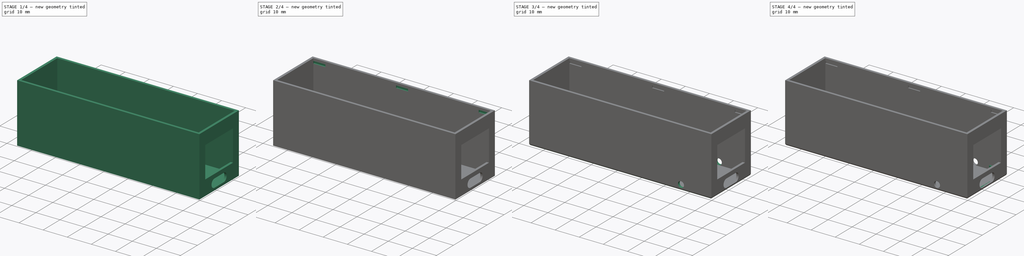
[diagram: build sequence overview — one tinted view per stage of 4, left to right]
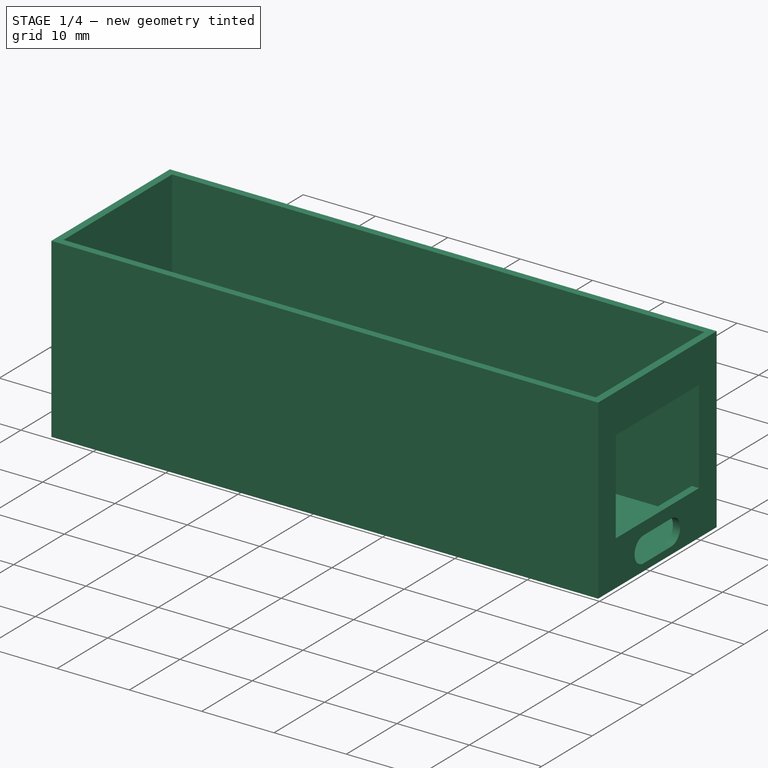
[diagram: stage 1 of 4 — iso view after this stage's code; geometry added in this stage tinted green]
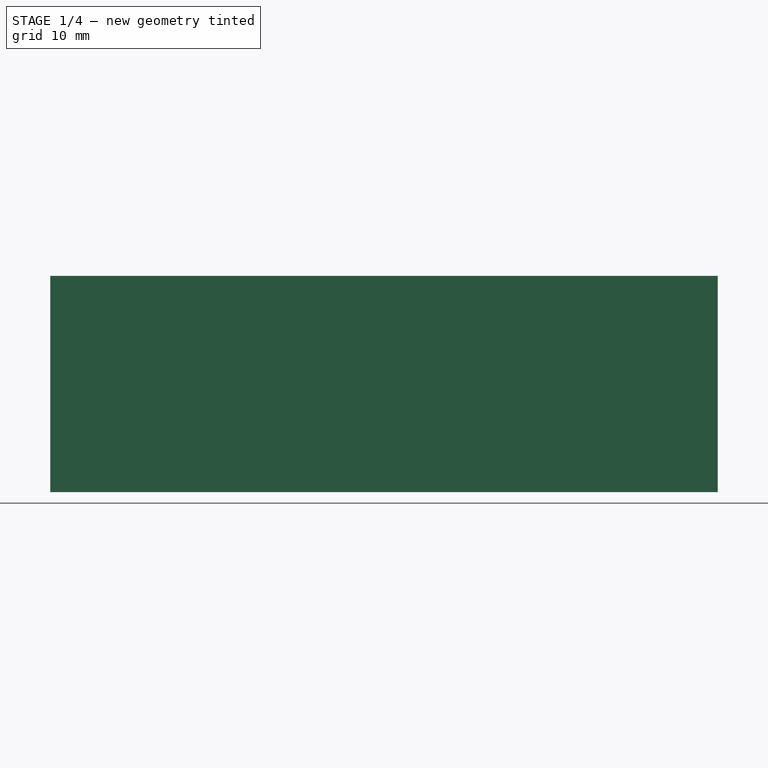
[diagram: stage 1 of 4 — front view after this stage's code; geometry added in this stage tinted green]
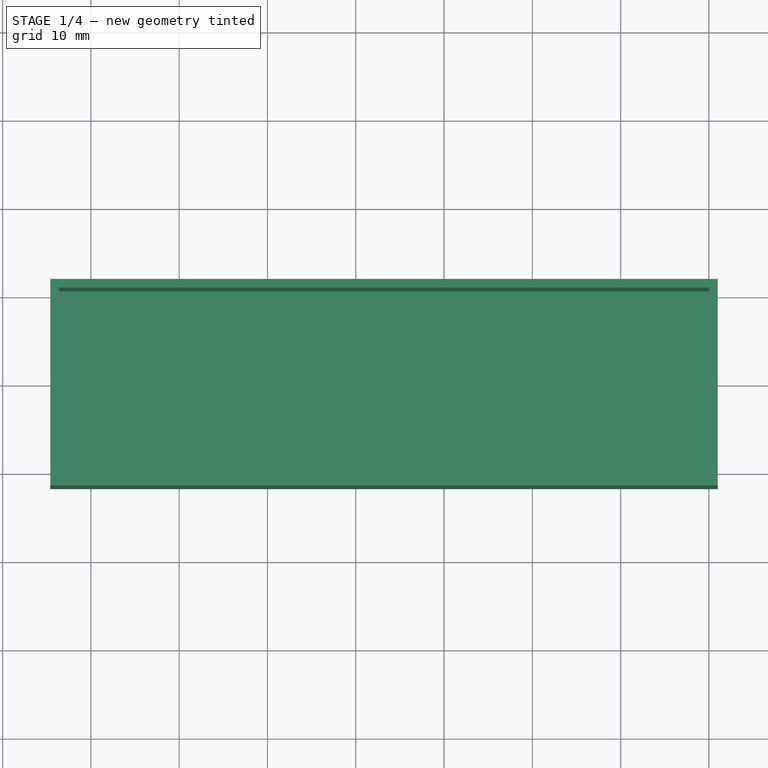
[diagram: stage 1 of 4 — top view after this stage's code; geometry added in this stage tinted green]
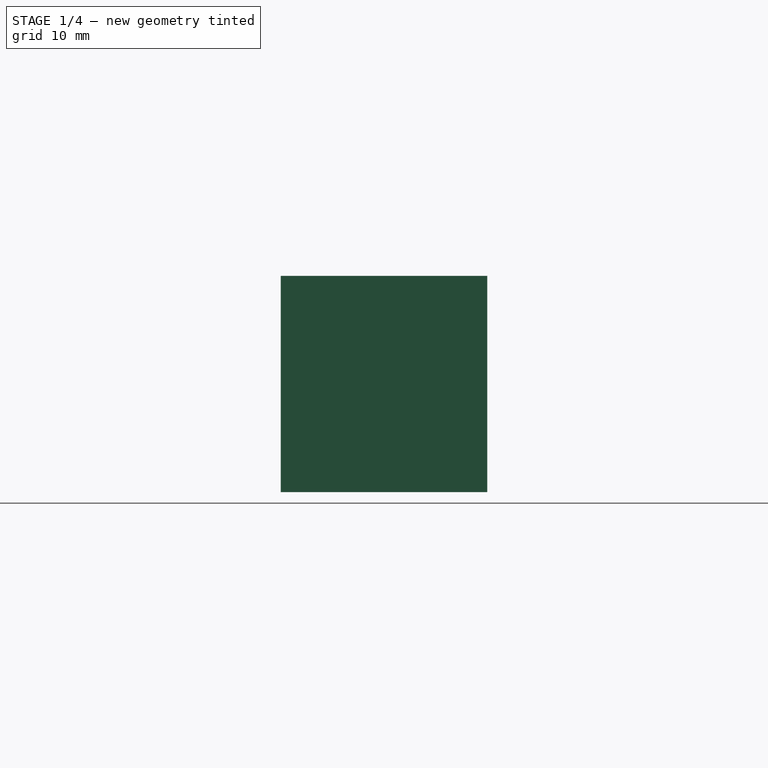
[diagram: stage 1 of 4 — right view after this stage's code; geometry added in this stage tinted green]
FCSTD DOCUMENT  (FreeCAD 1.0R39285 (Git))
Label: WaveShare case 2
License: All rights reserved
LicenseURL: http://en.wikipedia.org/wiki/All_rights_reserved
objects: Sketcher::SketchObject×10, PartDesign::Pad×5, PartDesign::Pocket×5, PartDesign::LinearPattern×2, PartDesign::Fillet×2, PartDesign::Body×2, Spreadsheet::Sheet×1, App::Part×1
note: 62 computed .brp shape members not serialized (recipe doc carries the construction recipe); baked Part::Feature solids carry a one-line shape summary decoded from their .brp

FEATURE [Sketcher::SketchObject] Sketch
  ArcFitTolerance = 1e-06
  AttachmentSupport = -> [XY_Plane001]
  FullyConstrained = true
  MakeInternals = false
  MapMode = 5
  expr: Constraints[10] = <<params>>.wall
  expr: Constraints[7] = <<params>>.boardwidth + <<params>>.wall * 2
  expr: Constraints[8] = <<params>>.boardlength + <<params>>.wall * 2
  sketch-geometry (4):
    g0: LineSegment StartX=-74.6 StartY=11.7 StartZ=0 EndX=-74.6 EndY=-11.7 EndZ=0
    g1: LineSegment StartX=-74.6 StartY=-11.7 StartZ=0 EndX=1 EndY=-11.7 EndZ=0
    g2: LineSegment StartX=1 StartY=-11.7 StartZ=0 EndX=1 EndY=11.7 EndZ=0
    g3: LineSegment StartX=1 StartY=11.7 StartZ=0 EndX=-74.6 EndY=11.7 EndZ=0
  constraints (11):
    c: Coincident(g0,g1)
    c: Coincident(g1,g2)
    c: Coincident(g2,g3)
    c: Coincident(g3,g0)
    c: Vertical(g0)
    c: Horizontal(g1)
    c: Horizontal(g3)
    c: DistanceY(g0,g0) = 23.4
    c: DistanceX(g3,g3) = 75.6
    c: Symmetric(g2,g1,g-1)
    c: Distance(g-1,g2) = 1
FEATURE [Spreadsheet::Sheet] Spreadsheet  label="params"
  cells = A1='boardwidth; B1(boardwidth)==21.4 mm; D1='wall; E1(wall)==1 mm; A2='boardlength; B2(boardlength)==73.6 mm; A3='caseheight; B3(caseheight)==23.5 mm; A5='ethwidth; B5(ethwidth)==16.45 mm; A6='ethheight; B6(ethheight)==12.9 mm; A7='ethoffset; B7(ethoffset)==5.21 mm; A9='usbwidth; B9(usbwidth)==9 mm; A10='usbheight; B10(usbheight)==3.5 mm; A11='usboffset; B11(usboffset)=0
FEATURE [PartDesign::Pad] Pad  label="Base"
  Direction = (0,0,1)
  Length = 1
  Length2 = 10
  Profile = -> Sketch
  ReferenceAxis = -> Sketch [N_Axis]
  Reversed = true
  Suppressed = false
  Type = 0
  expr: Length = <<params>>.wall
FEATURE [Sketcher::SketchObject] Sketch001
  ArcFitTolerance = 1e-06
  AttachmentSupport = -> [XY_Plane001]
  FullyConstrained = true
  MakeInternals = false
  MapMode = 5
  expr: Constraints[14] = <<params>>.boardwidth
  expr: Constraints[15] = <<params>>.boardwidth + <<params>>.wall * 2
  expr: Constraints[16] = <<params>>.boardlength
  expr: Constraints[17] = <<params>>.boardlength + <<params>>.wall * 2
  expr: Constraints[19] = <<params>>.wall
  sketch-geometry (8):
    g0: LineSegment StartX=-73.6 StartY=10.7 StartZ=0 EndX=-73.6 EndY=-10.7 EndZ=0
    g1: LineSegment StartX=-73.6 StartY=-10.7 StartZ=0 EndX=0 EndY=-10.7 EndZ=0
    g2: LineSegment StartX=0 StartY=-10.7 StartZ=0 EndX=0 EndY=10.7 EndZ=0
    g3: LineSegment StartX=0 StartY=10.7 StartZ=0 EndX=-73.6 EndY=10.7 EndZ=0
    g4: LineSegment StartX=-74.6 StartY=11.7 StartZ=0 EndX=-74.6 EndY=-11.7 EndZ=0
    g5: LineSegment StartX=-74.6 StartY=-11.7 StartZ=0 EndX=1 EndY=-11.7 EndZ=0
    g6: LineSegment StartX=1 StartY=-11.7 StartZ=0 EndX=1 EndY=11.7 EndZ=0
    g7: LineSegment StartX=1 StartY=11.7 StartZ=0 EndX=-74.6 EndY=11.7 EndZ=0
  constraints (22):
    c: Coincident(g0,g1)
    c: Coincident(g1,g2)
    c: Coincident(g2,g3)
    c: Coincident(g3,g0)
    c: Vertical(g0)
    c: Horizontal(g1)
    c: Horizontal(g3)
    c: Coincident(g4,g5)
    c: Coincident(g5,g6)
    c: Coincident(g6,g7)
    c: Coincident(g7,g4)
    c: Vertical(g4)
    c: Horizontal(g5)
    c: Horizontal(g7)
    c: DistanceY(g0,g0) = 21.4
    c: DistanceY(g4,g4) = 23.4
    c: DistanceX(g3,g3) = 73.6
    c: DistanceX(g7,g7) = 75.6
    c: PointOnObject(g-1,g2)
    c: Distance(g-1,g6) = 1
    c: Symmetric(g2,g1,g-1)
    c: Symmetric(g6,g5,g-1)
FEATURE [PartDesign::Pad] Pad001  label="Wall"
  BaseFeature = -> Pad
  Direction = (0,0,1)
  Length = 23.5
  Length2 = 10
  Profile = -> Sketch001
  ReferenceAxis = -> Sketch001 [N_Axis]
  Suppressed = false
  Type = 0
  expr: Length = <<params>>.caseheight
FEATURE [Sketcher::SketchObject] Sketch002
  ArcFitTolerance = 1e-06
  AttachmentSupport = -> [YZ_Plane001]
  FullyConstrained = true
  MakeInternals = false
  MapMode = 5
  Placement = pos=(0,0,0) rot=(0.57735,0.57735,0.57735;2.0944rad)
  expr: Constraints[10] = <<params>>.ethoffset
  expr: Constraints[7] = <<params>>.ethwidth
  expr: Constraints[8] = <<params>>.ethheight
  sketch-geometry (4):
    g0: LineSegment StartX=-8.225 StartY=5.21 StartZ=0 EndX=8.225 EndY=5.21 EndZ=0
    g1: LineSegment StartX=8.225 StartY=5.21 StartZ=0 EndX=8.225 EndY=18.11 EndZ=0
    g2: LineSegment StartX=8.225 StartY=18.11 StartZ=0 EndX=-8.225 EndY=18.11 EndZ=0
    g3: LineSegment StartX=-8.225 StartY=18.11 StartZ=0 EndX=-8.225 EndY=5.21 EndZ=0
  constraints (11):
    c: Coincident(g0,g1)
    c: Coincident(g1,g2)
    c: Coincident(g2,g3)
    c: Coincident(g3,g0)
    c: Horizontal(g2)
    c: Vertical(g1)
    c: Vertical(g3)
    c: DistanceX(g2,g2) = 16.45
    c: DistanceY(g1,g1) = 12.9
    c: Symmetric(g0,g0,g-2)
    c: Distance(g0,g-1) = 5.21
FEATURE [PartDesign::Pocket] Pocket  label="Eth port"
  BaseFeature = -> Pad001
  Direction = (-1,0,0)
  Length = 1
  Length2 = 5
  Profile = -> Sketch002
  ReferenceAxis = -> Sketch002 [N_Axis]
  Reversed = true
  Suppressed = false
  Type = 0
  expr: Length = <<params>>.wall
FEATURE [Sketcher::SketchObject] Sketch003
  ArcFitTolerance = 1e-06
  AttachmentSupport = -> [YZ_Plane001]
  FullyConstrained = true
  MakeInternals = false
  MapMode = 5
  Placement = pos=(0,0,0) rot=(0.57735,0.57735,0.57735;2.0944rad)
  expr: Constraints[16] = <<params>>.usbwidth
  expr: Constraints[6] = <<params>>.usbheight
  expr: Constraints[7] = <<params>>.usboffset
  sketch-geometry (6):
    g0: ArcOfCircle CenterX=-2.75 CenterY=1.75 CenterZ=0 NormalX=0 NormalY=0 NormalZ=1 AngleXU=0 Radius=1.75 StartAngle=1.5708 EndAngle=4.71239
    g1: ArcOfCircle CenterX=2.75 CenterY=1.75 CenterZ=0 NormalX=0 NormalY=0 NormalZ=1 AngleXU=0 Radius=1.75 StartAngle=4.71239 EndAngle=7.85398
    g2: LineSegment StartX=-2.75 StartY=3.5 StartZ=0 EndX=2.75 EndY=3.5 EndZ=0
    g3: LineSegment StartX=-2.75 StartY=0 StartZ=0 EndX=2.75 EndY=0 EndZ=0
    g4: LineSegment [constr] StartX=-4.5 StartY=1.75 StartZ=0 EndX=-4.5 EndY=0 EndZ=0
    g5: LineSegment [constr] StartX=4.5 StartY=1.75 StartZ=0 EndX=4.5 EndY=0 EndZ=0
  constraints (17):
    c: Tangent(g0,g2) = 1.5708
    c: Tangent(g0,g3) = -1.5708
    c: Tangent(g1,g2) = 1.5708
    c: Tangent(g1,g3) = -1.5708
    c: Equal(g0,g1)
    c: Symmetric(g1,g0,g-2)
    c: DistanceY(g0,g0) = 3.5
    c: Distance(g1,g-1) = 0
    c: PointOnObject(g4,g0)
    c: PointOnObject(g4,g-1)
    c: Vertical(g4)
    c: PointOnObject(g5,g1)
    c: PointOnObject(g5,g-1)
    c: Vertical(g5)
    c: Horizontal(g1,g5)
    c: Horizontal(g0,g4)
    c: DistanceX(g4,g5) = 9
FEATURE [PartDesign::Pocket] Pocket001  label="USB port"
  BaseFeature = -> Pocket
  Direction = (-1,0,0)
  Length = 1
  Length2 = 5
  Profile = -> Sketch003
  ReferenceAxis = -> Sketch003 [N_Axis]
  Reversed = true
  Suppressed = false
  Type = 0
  expr: Length = <<params>>.wall
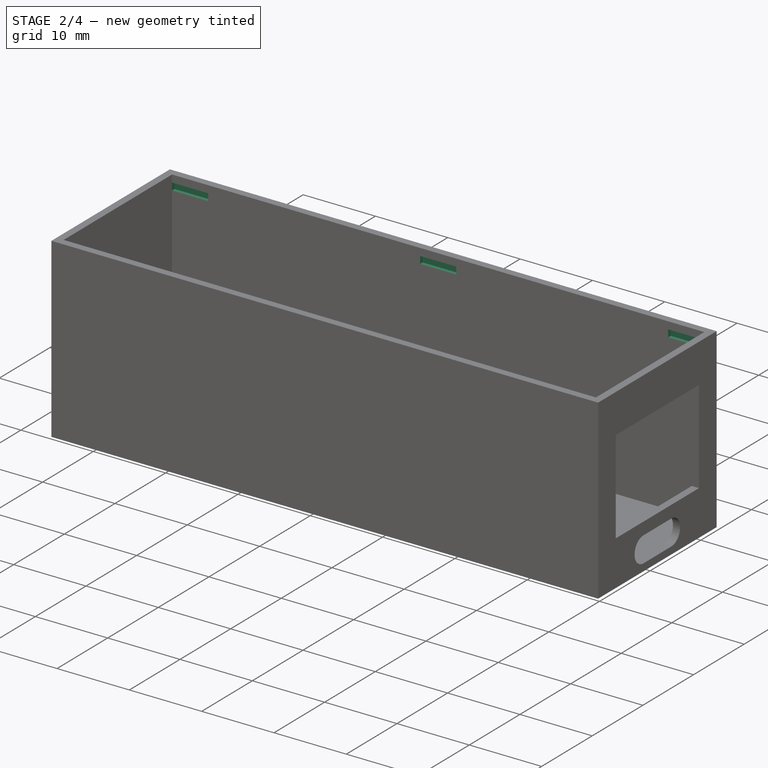
[diagram: stage 2 of 4 — iso view after this stage's code; geometry added in this stage tinted green]
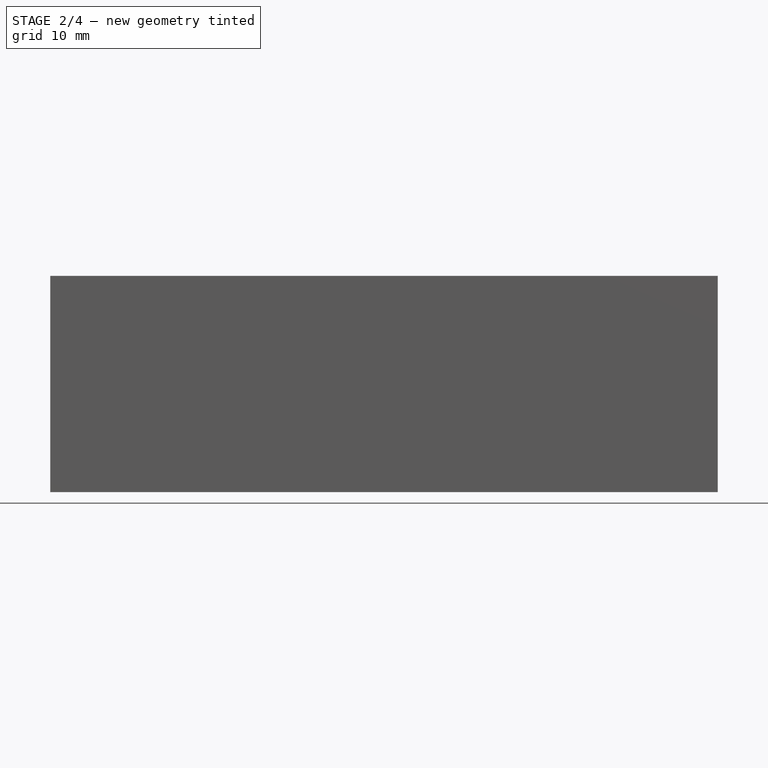
[diagram: stage 2 of 4 — front view after this stage's code; geometry added in this stage tinted green]
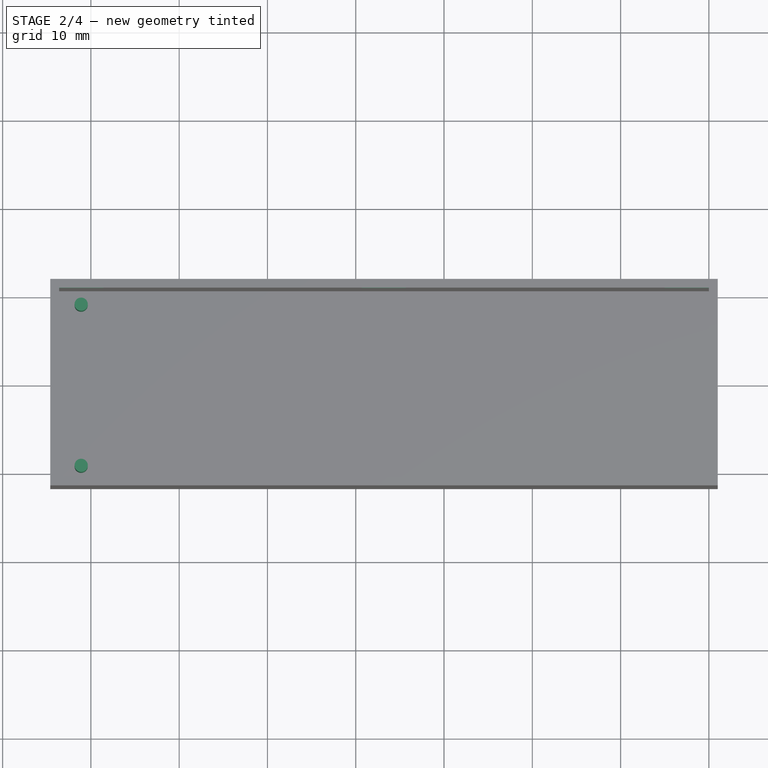
[diagram: stage 2 of 4 — top view after this stage's code; geometry added in this stage tinted green]
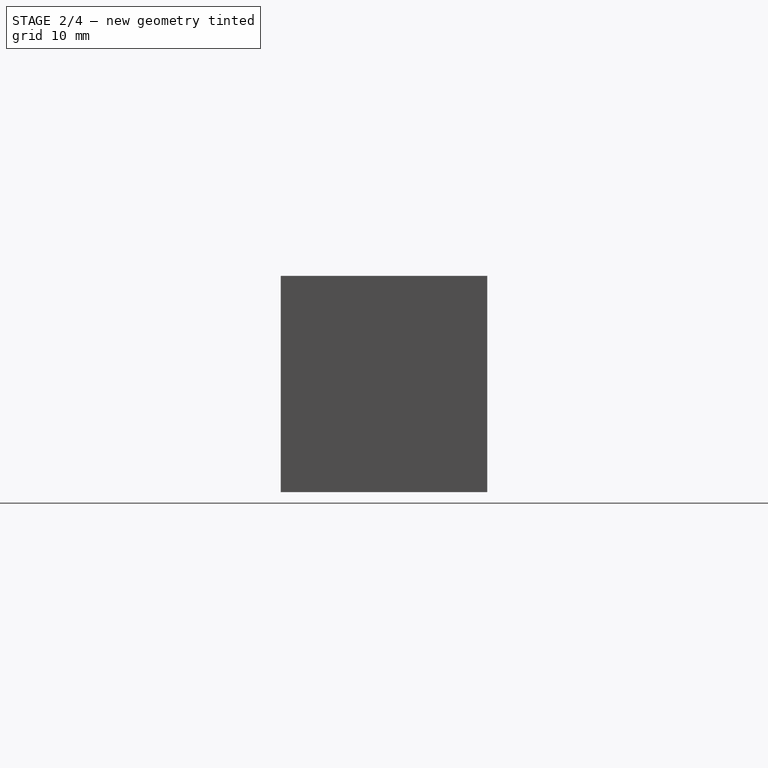
[diagram: stage 2 of 4 — right view after this stage's code; geometry added in this stage tinted green]
FEATURE [Sketcher::SketchObject] Sketch006
  ArcFitTolerance = 1e-06
  AttachmentSupport = -> [YZ_Plane001]
  FullyConstrained = true
  MakeInternals = false
  MapMode = 5
  Placement = pos=(0,0,0) rot=(0.57735,0.57735,0.57735;2.0944rad)
  expr: Constraints[10] = <<params>>.boardwidth + 1 mm
  expr: Constraints[8] = <<params>>.caseheight - 1 mm
  sketch-geometry (4):
    g0: LineSegment StartX=-11.2 StartY=22.5 StartZ=0 EndX=-11.2 EndY=21.5 EndZ=0
    g1: LineSegment StartX=-11.2 StartY=21.5 StartZ=0 EndX=11.2 EndY=21.5 EndZ=0
    g2: LineSegment StartX=11.2 StartY=21.5 StartZ=0 EndX=11.2 EndY=22.5 EndZ=0
    g3: LineSegment StartX=11.2 StartY=22.5 StartZ=0 EndX=-11.2 EndY=22.5 EndZ=0
  constraints (11):
    c: Coincident(g0,g1)
    c: Coincident(g1,g2)
    c: Coincident(g2,g3)
    c: Coincident(g3,g0)
    c: Vertical(g0)
    c: Vertical(g2)
    c: Horizontal(g1)
    c: Symmetric(g0,g2,g-2)
    c: Distance(g-1,g3) = 22.5
    c: DistanceY(g2,g2) = 1
    c: DistanceX(g3,g3) = 22.4
FEATURE [PartDesign::Pocket] Pocket003  label="Lid slot"
  BaseFeature = -> Pocket001
  Direction = (-1,0,0)
  Length = 5
  Length2 = 5
  Profile = -> Sketch006
  ReferenceAxis = -> Sketch006 [N_Axis]
  Suppressed = false
  Type = 0
FEATURE [PartDesign::LinearPattern] LinearPattern  label="Lid slot rear"
  BaseFeature = -> Pocket003
  Direction = -> Sketch006 [N_Axis]
  Length = 68.6
  Mode = 0
  Occurrences = 3
  Offset = 34.3
  Originals = -> [Pocket003]
  Reversed = true
  Suppressed = false
  TransformMode = 0
  expr: Length = <<params>>.boardlength - 5 mm
FEATURE [Sketcher::SketchObject] Sketch009
  ArcFitTolerance = 1e-06
  AttachmentSupport = -> [XY_Plane001]
  FullyConstrained = true
  MakeInternals = false
  MapMode = 5
  sketch-geometry (2):
    g0: Circle CenterX=-71.1 CenterY=9.125 CenterZ=0 NormalX=0 NormalY=0 NormalZ=1 AngleXU=0 Radius=0.75
    g1: Circle CenterX=-71.1 CenterY=-9.125 CenterZ=0 NormalX=0 NormalY=0 NormalZ=1 AngleXU=0 Radius=0.75
  constraints (5):
    c: Symmetric(g0,g1,g-1)
    c: Equal(g0,g1)
    c: Diameter(g0) = 1.5
    c: DistanceX(g0,g-1) = 71.1
    c: DistanceY(g1,g0) = 18.25
FEATURE [PartDesign::Pad] Pad005  label="Pins"
  BaseFeature = -> LinearPattern
  Direction = (0,0,1)
  Length = 6.21
  Length2 = 10
  Profile = -> Sketch009
  ReferenceAxis = -> Sketch009 [N_Axis]
  Suppressed = false
  Type = 0
  expr: Length = <<params>>.ethoffset + 1 mm
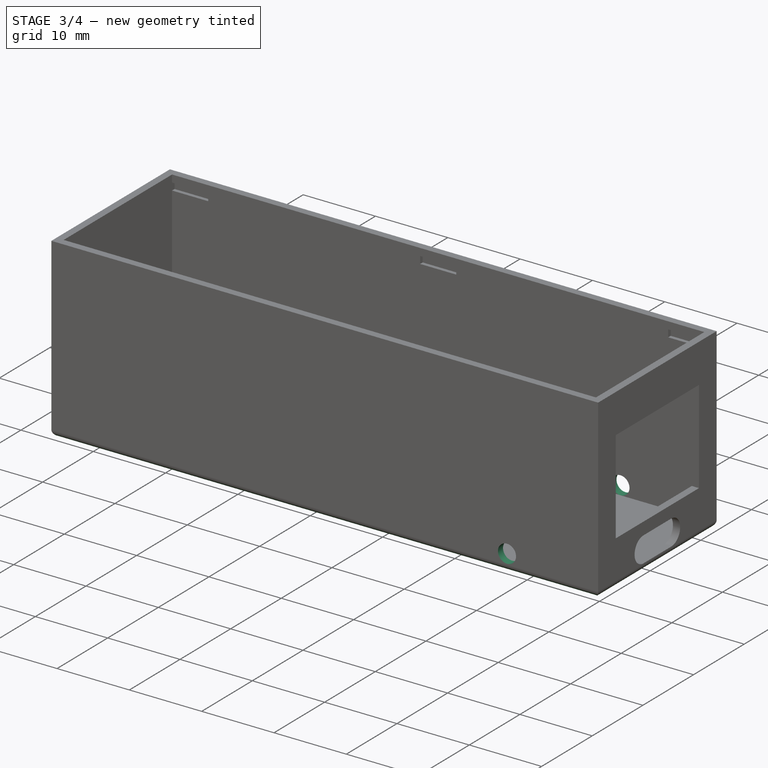
[diagram: stage 3 of 4 — iso view after this stage's code; geometry added in this stage tinted green]
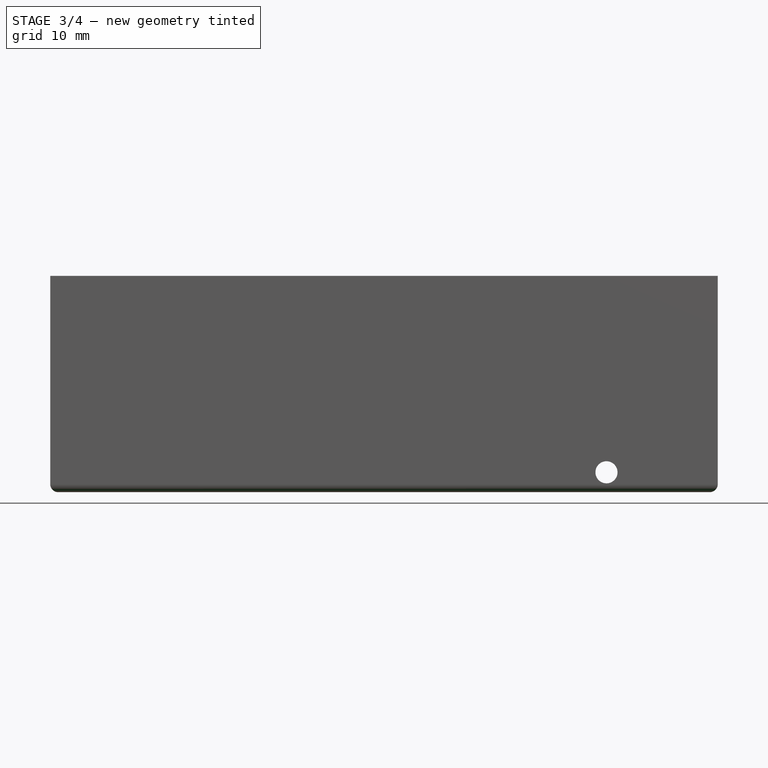
[diagram: stage 3 of 4 — front view after this stage's code; geometry added in this stage tinted green]
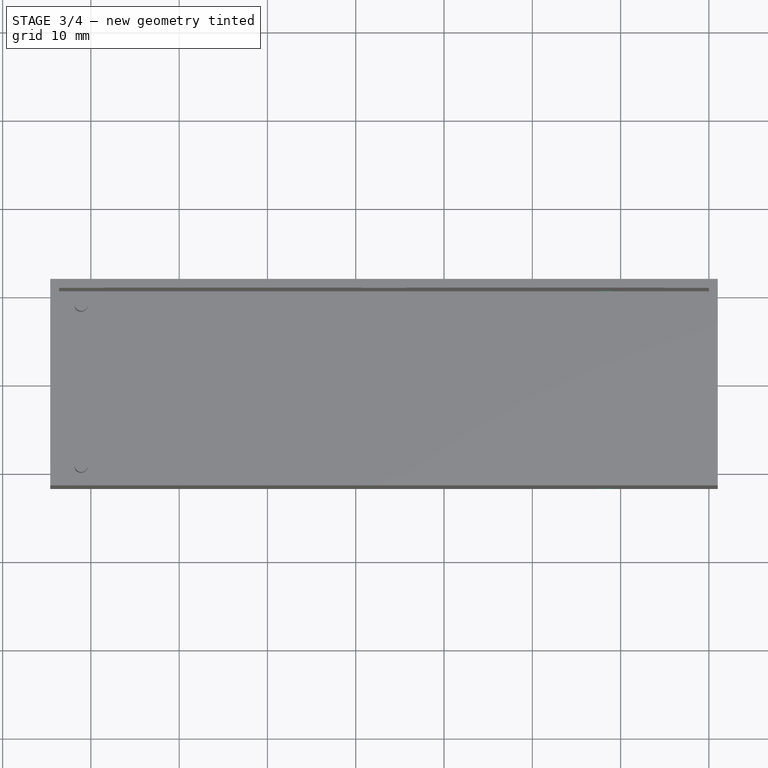
[diagram: stage 3 of 4 — top view after this stage's code; geometry added in this stage tinted green]
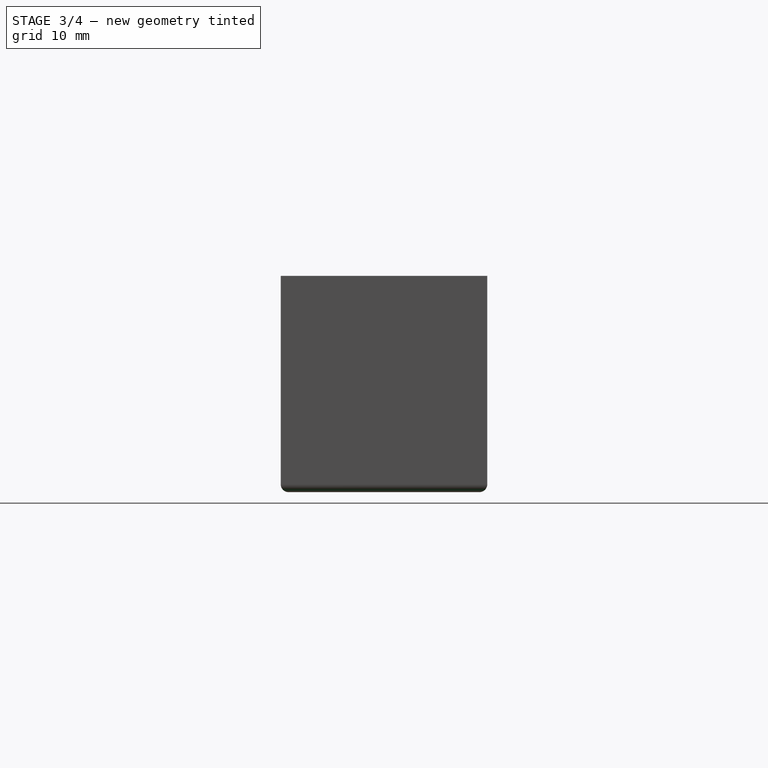
[diagram: stage 3 of 4 — right view after this stage's code; geometry added in this stage tinted green]
FEATURE [PartDesign::Body] Body001  label="Lid"
  AllowCompound = false
  Group = -> [Sketch007,Pad003,Sketch008,Pad004,LinearPattern002,Fillet]
  Origin = -> Origin002
  Placement = pos=(0,43,0) rot=(0,0,1;0rad)
  Tip = -> Fillet
FEATURE [Sketcher::SketchObject] Sketch010
  ArcFitTolerance = 1e-06
  AttachmentSupport = -> [YZ_Plane001]
  FullyConstrained = true
  MakeInternals = false
  MapMode = 5
  Placement = pos=(0,0,0) rot=(0.57735,0.57735,0.57735;2.0944rad)
  expr: Constraints[3] = <<params>>.usbheight - 0.5 mm
  sketch-geometry (2):
    g0: Circle CenterX=-7.075 CenterY=3 CenterZ=0 NormalX=0 NormalY=0 NormalZ=1 AngleXU=0 Radius=1.5
    g1: Circle CenterX=7.075 CenterY=3 CenterZ=0 NormalX=0 NormalY=0 NormalZ=1 AngleXU=0 Radius=1.5
  constraints (5):
    c: Symmetric(g1,g0,g-2)
    c: Diameter(g0) = 3
    c: Equal(g0,g1)
    c: DistanceY(g-1,g0) = 3
    c: DistanceX(g0,g1) = 14.15
FEATURE [PartDesign::Pocket] Pocket004  label="Lights"
  BaseFeature = -> Pad005
  Direction = (-1,0,0)
  Length = 0.5
  Length2 = 5
  Profile = -> Sketch010
  ReferenceAxis = -> Sketch010 [N_Axis]
  Reversed = true
  Suppressed = false
  Type = 0
FEATURE [Sketcher::SketchObject] Sketch011
  ArcFitTolerance = 1e-06
  AttachmentSupport = -> [XZ_Plane001]
  FullyConstrained = true
  MakeInternals = false
  MapMode = 5
  Placement = pos=(0,0,0) rot=(1,0,0;1.5708rad)
  sketch-geometry (1):
    g0: Circle CenterX=-11.6 CenterY=1.25 CenterZ=0 NormalX=0 NormalY=0 NormalZ=1 AngleXU=0 Radius=1.25
  constraints (3):
    c: Diameter(g0) = 2.5
    c: DistanceY(g-1,g0) = 1.25
    c: DistanceX(g0,g-1) = 11.6
FEATURE [PartDesign::Pocket] Pocket005
  BaseFeature = -> Pocket004
  Direction = (0,1,-2e-16)
  Length = 5
  Length2 = 5
  Midplane = true
  Profile = -> Sketch011
  ReferenceAxis = -> Sketch011 [N_Axis]
  Suppressed = false
  Type = 1
FEATURE [PartDesign::Fillet] Fillet001
  Base = -> Pocket005 [Face5]
  BaseFeature = -> Pocket005
  Radius = 0.9
  SupportTransform = false
  Suppressed = false
  UseAllEdges = false
FEATURE [PartDesign::Body] Body  label="Box"
  AllowCompound = false
  Group = -> [Sketch,Pad,Sketch001,Pad001,Sketch002,Pocket,Sketch003,Pocket001,Sketch006,Pocket003,LinearPattern,Sketch009,Pad005,Sketch010,Pocket004,Sketch011,Pocket005,Fillet001]
  Origin = -> Origin001
  Tip = -> Fillet001
FEATURE [App::Part] Part
  Group = -> [Body,Body001]
  Origin = -> Origin
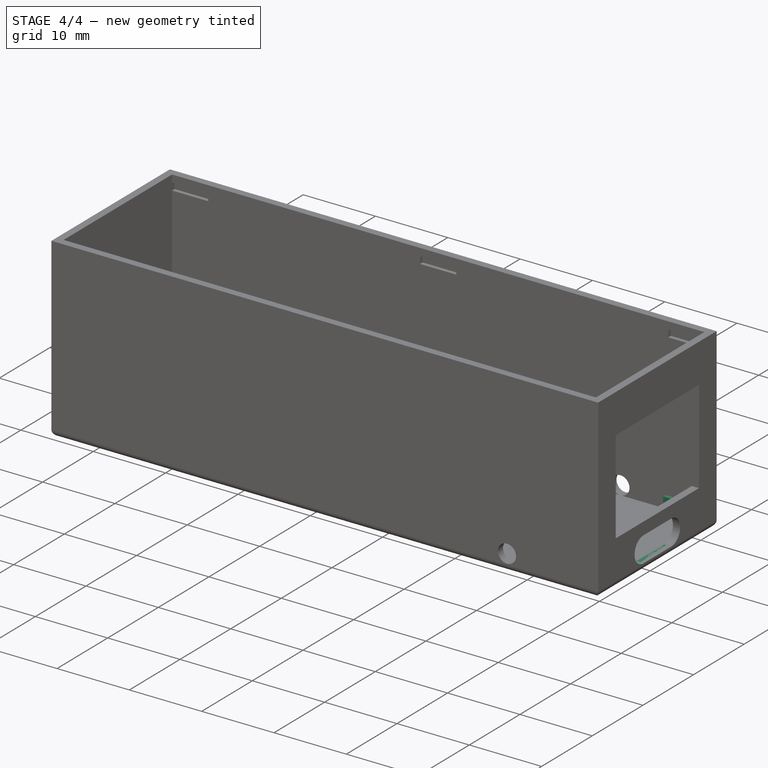
[diagram: stage 4 of 4 — iso view after this stage's code; geometry added in this stage tinted green]
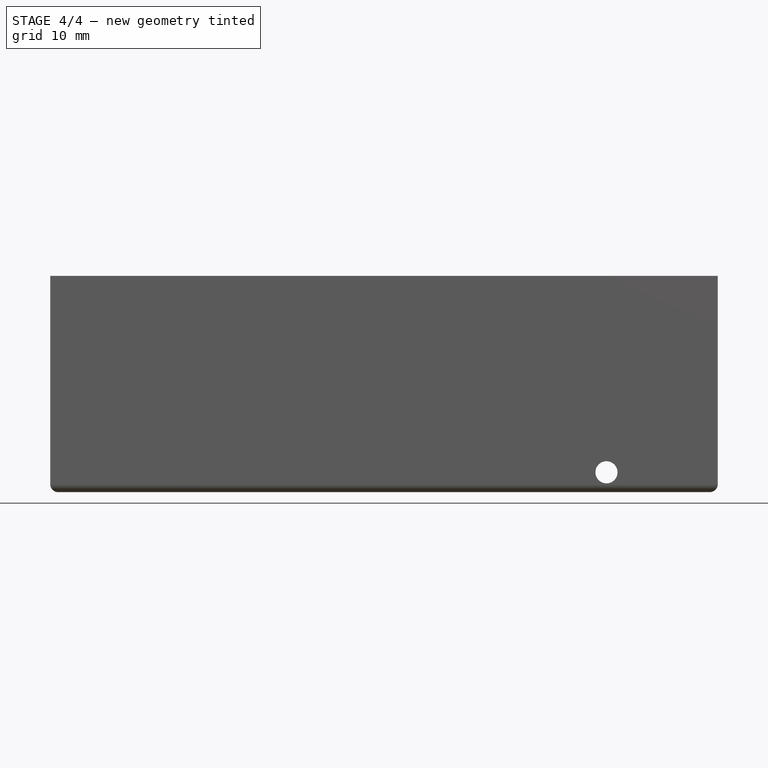
[diagram: stage 4 of 4 — front view after this stage's code; geometry added in this stage tinted green]
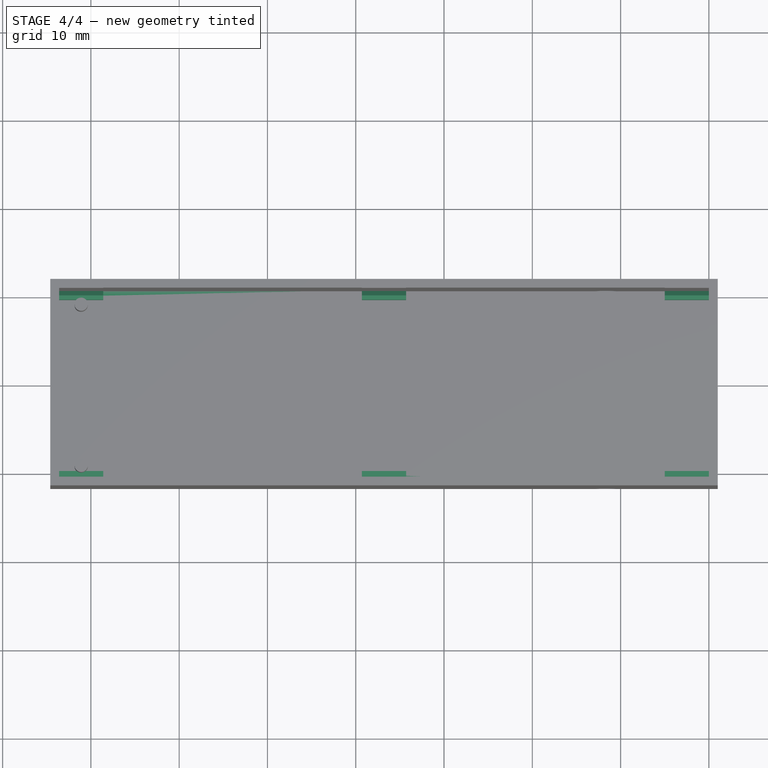
[diagram: stage 4 of 4 — top view after this stage's code; geometry added in this stage tinted green]
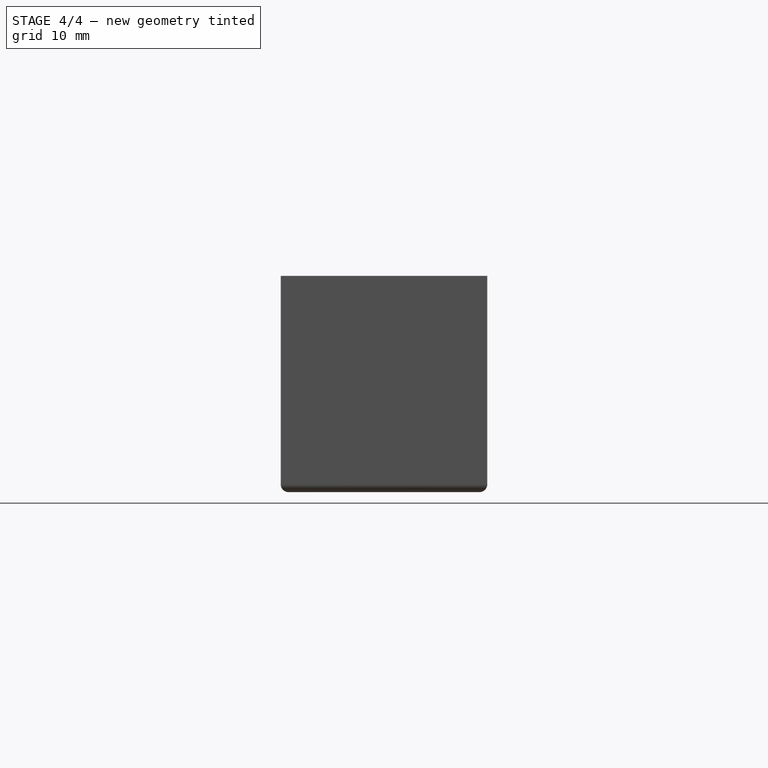
[diagram: stage 4 of 4 — right view after this stage's code; geometry added in this stage tinted green]
FEATURE [Sketcher::SketchObject] Sketch007
  ArcFitTolerance = 1e-06
  AttachmentSupport = -> [XY_Plane002]
  FullyConstrained = true
  MakeInternals = false
  MapMode = 5
  expr: Constraints[10] = <<params>>.wall
  expr: Constraints[7] = <<params>>.boardlength + <<params>>.wall * 2
  expr: Constraints[8] = <<params>>.boardwidth + <<params>>.wall * 2
  sketch-geometry (4):
    g0: LineSegment StartX=-74.6 StartY=11.7 StartZ=0 EndX=-74.6 EndY=-11.7 EndZ=0
    g1: LineSegment StartX=-74.6 StartY=-11.7 StartZ=0 EndX=1 EndY=-11.7 EndZ=0
    g2: LineSegment StartX=1 StartY=-11.7 StartZ=0 EndX=1 EndY=11.7 EndZ=0
    g3: LineSegment StartX=1 StartY=11.7 StartZ=0 EndX=-74.6 EndY=11.7 EndZ=0
  constraints (11):
    c: Coincident(g0,g1)
    c: Coincident(g1,g2)
    c: Coincident(g2,g3)
    c: Coincident(g3,g0)
    c: Vertical(g2)
    c: Horizontal(g1)
    c: Horizontal(g3)
    c: DistanceX(g3,g3) = 75.6
    c: DistanceY(g0,g0) = 23.4
    c: Symmetric(g0,g0,g-1)
    c: Distance(g-1,g2) = 1
FEATURE [PartDesign::Pad] Pad003  label="Base001"
  Direction = (0,0,1)
  Length = 1
  Length2 = 10
  Profile = -> Sketch007
  ReferenceAxis = -> Sketch007 [N_Axis]
  Reversed = true
  Suppressed = false
  Type = 0
  expr: Length = <<params>>.wall
FEATURE [Sketcher::SketchObject] Sketch008
  ArcFitTolerance = 1e-06
  AttachmentSupport = -> [YZ_Plane002]
  FullyConstrained = true
  MakeInternals = false
  MapMode = 5
  Placement = pos=(0,0,0) rot=(0.57735,0.57735,0.57735;2.0944rad)
  expr: Constraints[34] = <<params>>.boardwidth + 1 mm
  sketch-geometry (12):
    g0: LineSegment StartX=-10.2 StartY=0 StartZ=0 EndX=-10.2 EndY=1.2 EndZ=0
    g1: LineSegment StartX=-10.2 StartY=1.2 StartZ=0 EndX=-11.2 EndY=1.2 EndZ=0
    g2: LineSegment StartX=-9.7 StartY=2 StartZ=0 EndX=-9.7 EndY=0 EndZ=0
    g3: LineSegment StartX=-9.7 StartY=0 StartZ=0 EndX=-10.2 EndY=0 EndZ=0
    g4: LineSegment StartX=9.7 StartY=0 StartZ=0 EndX=9.7 EndY=2 EndZ=0
    g5: LineSegment StartX=11.2 StartY=1.2 StartZ=0 EndX=10.2 EndY=1.2 EndZ=0
    g6: LineSegment StartX=10.2 StartY=1.2 StartZ=0 EndX=10.2 EndY=0 EndZ=0
    g7: LineSegment StartX=10.2 StartY=0 StartZ=0 EndX=9.7 EndY=0 EndZ=0
    g8: LineSegment StartX=-11.2 StartY=1.2 StartZ=0 EndX=-10.2 EndY=2 EndZ=0
    g9: LineSegment StartX=-10.2 StartY=2 StartZ=0 EndX=-9.7 EndY=2 EndZ=0
    g10: LineSegment StartX=9.7 StartY=2 StartZ=0 EndX=10.2 EndY=2 EndZ=0
    g11: LineSegment StartX=10.2 StartY=2 StartZ=0 EndX=11.2 EndY=1.2 EndZ=0
  constraints (35):
    c: PointOnObject(g0,g-1)
    c: Coincident(g0,g1)
    c: Horizontal(g1)
    c: PointOnObject(g2,g-1)
    c: Vertical(g2)
    c: Coincident(g2,g3)
    c: Coincident(g3,g0)
    c: PointOnObject(g4,g-1)
    c: Vertical(g4)
    c: Horizontal(g5)
    c: Coincident(g5,g6)
    c: PointOnObject(g6,g-1)
    c: Vertical(g6)
    c: Coincident(g6,g7)
    c: Coincident(g7,g4)
    c: Horizontal(g5,g0)
    c: Symmetric(g2,g4,g-2)
    c: Equal(g5,g1)
    c: Equal(g7,g3)
    c: DistanceX(g1,g1) = 1
    c: DistanceY(g0,g0) = 1.2
    c: DistanceX(g3,g3) = 0.5
    c: Coincident(g1,g8)
    c: Coincident(g8,g9)
    c: Coincident(g4,g10)
    c: Horizontal(g10)
    c: Coincident(g10,g11)
    c: Coincident(g11,g5)
    c: Horizontal(g9)
    c: Coincident(g9,g2)
    c: DistanceY(g2,g2) = 2
    c: Vertical(g8,g0)
    c: Vertical(g10,g5)
    c: Vertical(g0)
    c: DistanceX(g1,g5) = 22.4
FEATURE [PartDesign::Pad] Pad004  label="Tabs"
  BaseFeature = -> Pad003
  Direction = (1,0,0)
  Length = 5
  Length2 = 10
  Profile = -> Sketch008
  ReferenceAxis = -> Sketch008 [N_Axis]
  Reversed = true
  Suppressed = false
  Type = 0
FEATURE [PartDesign::LinearPattern] LinearPattern002
  BaseFeature = -> Pad004
  Direction = -> Sketch008 [N_Axis]
  Length = 68.6
  Mode = 0
  Occurrences = 3
  Offset = 34.3
  Originals = -> [Pad004]
  Refine = true
  Reversed = true
  Suppressed = false
  TransformMode = 0
  expr: Length = <<params>>.boardlength - 5 mm
FEATURE [PartDesign::Fillet] Fillet
  Base = -> LinearPattern002 [Face5]
  BaseFeature = -> LinearPattern002
  Radius = 0.9
  SupportTransform = false
  Suppressed = false
  UseAllEdges = false
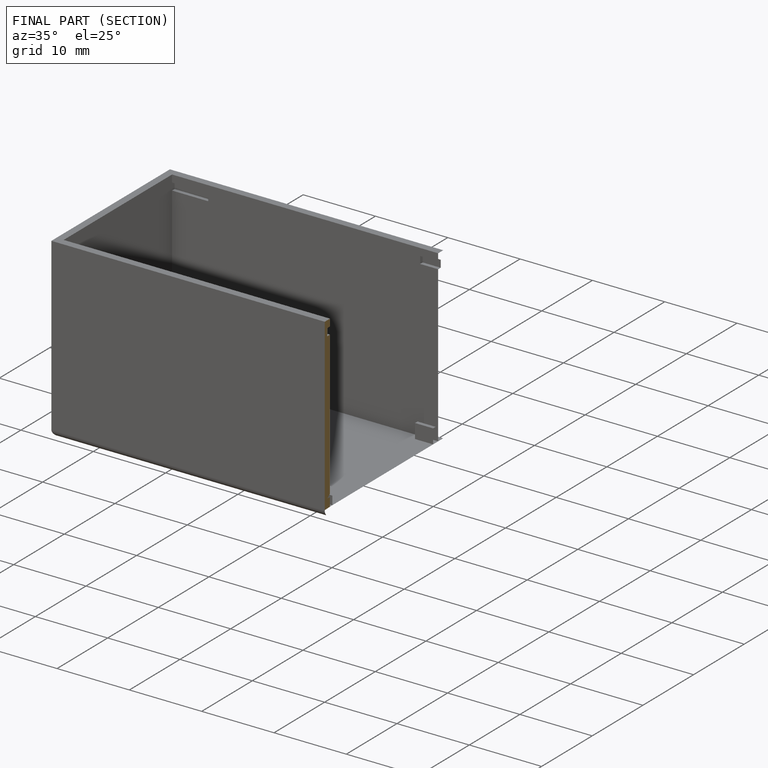
[diagram: finished part — half-section view (interior)]
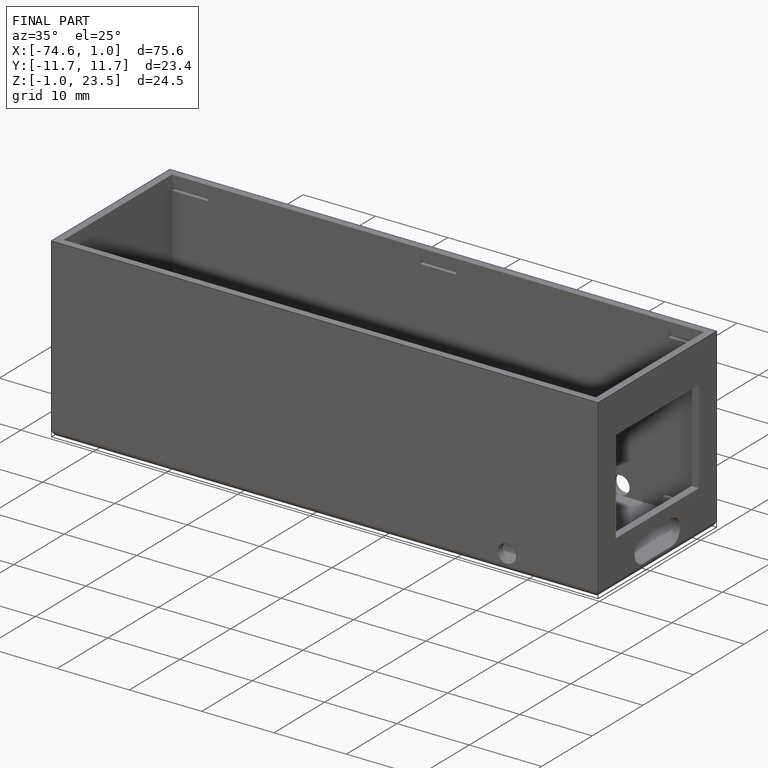
[diagram: finished part — iso view with bounding-box wireframe]
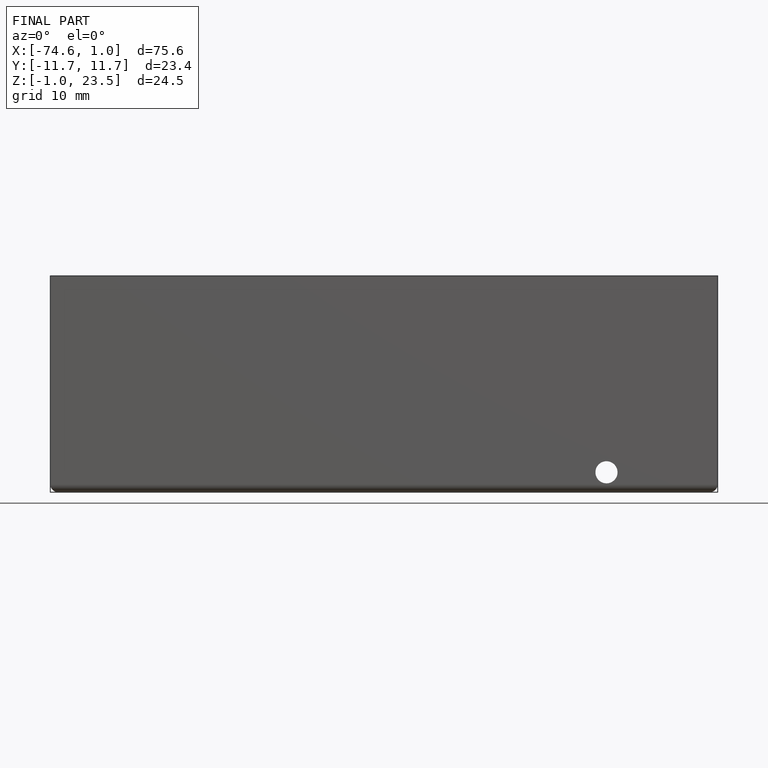
[diagram: finished part — front view with bounding-box wireframe]
